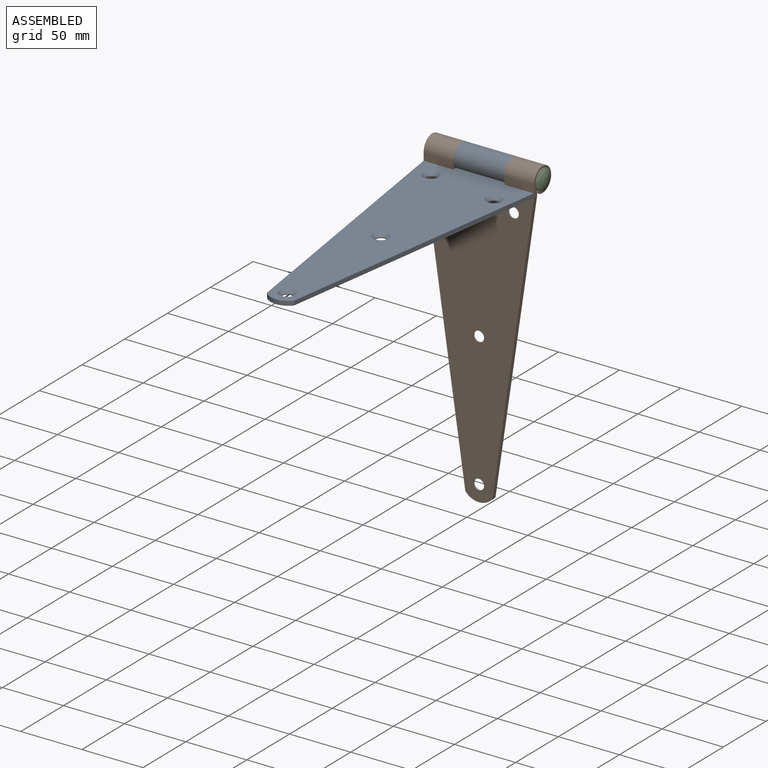
[diagram: assembled view]
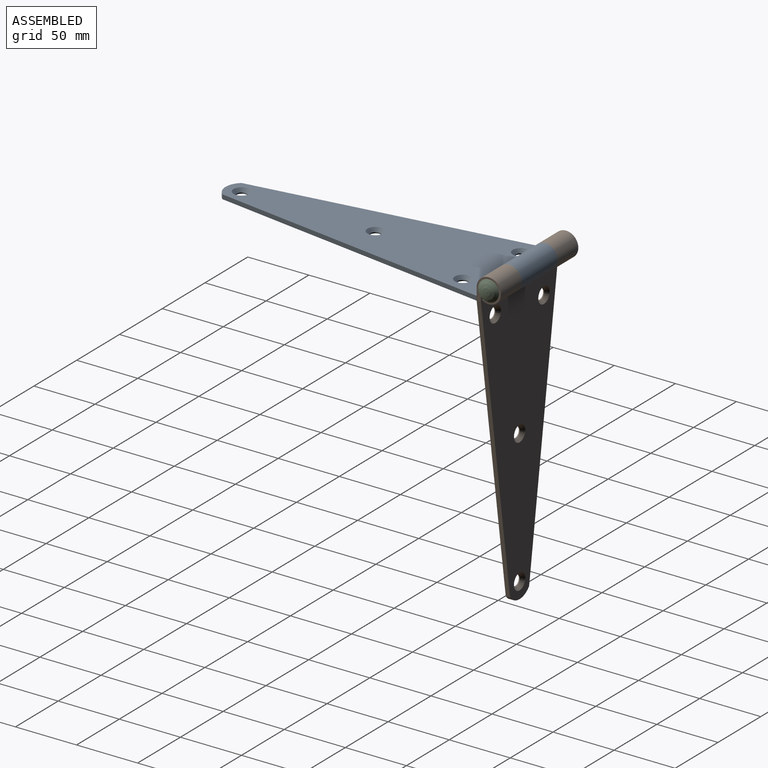
[diagram: assembled view, second angle]
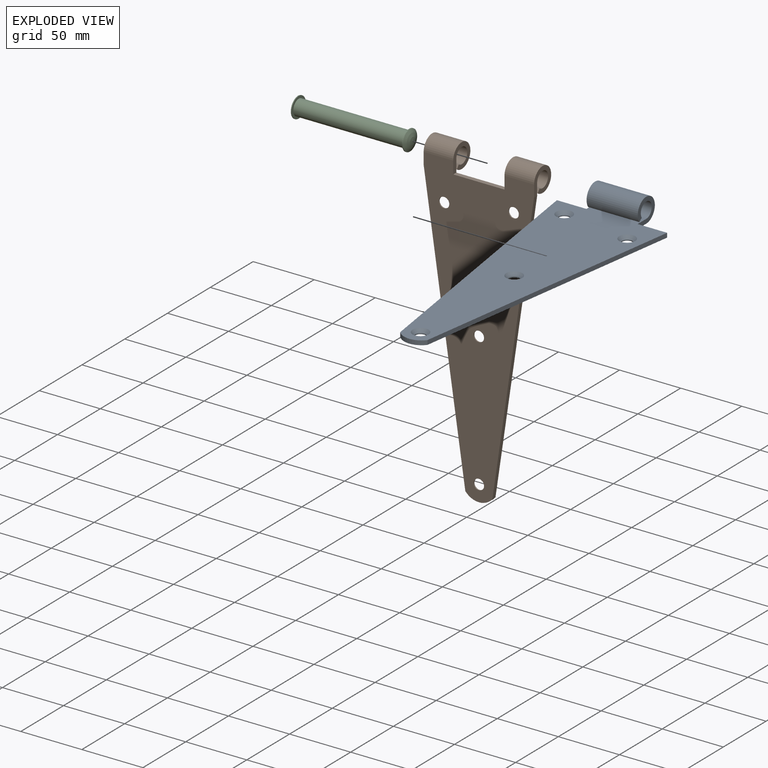
[diagram: exploded view]
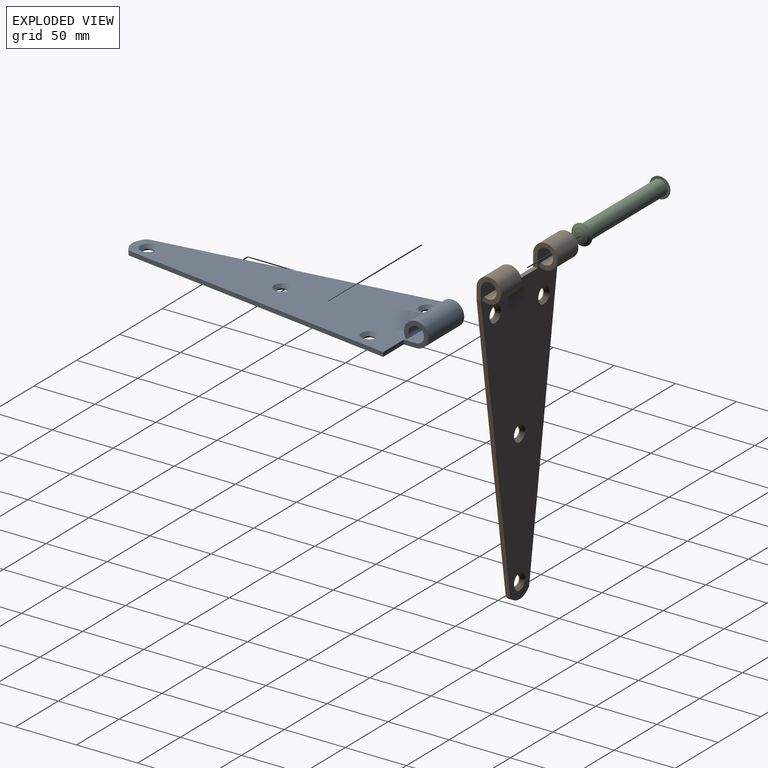
[diagram: exploded view, second angle]
ASSEMBLY  parts=3 mates=2
PART A: 20 faces, bbox 90.2x257.1x20 mm
  f0: plane 231.63x34.01mm, normal (-0.99,-0.15,0), area 832.5mm2, adj f2,f3,f7,f11
  f1: plane 231.63x34.01mm, normal (0.99,-0.15,0), area 832.5mm2, adj f2,f3,f7,f9
  f2: plane 247.11x90.25mm, normal (0,0,1), area 12986mm2, adj f0,f1,f5,f7,f8,f9,f10,f11
  f3: plane 247.11x90.25mm, normal (0,0,-1), area 13310.7mm2, adj f0,f1,f6,f7,f8,f9,f10,f11
  f4: plane 41.91x2.91mm, normal (0,0.57,-0.82), area 149mm2, adj f5,f6,f8,f10
  f5: cylinder r=6.43mm len=41.91mm, axis (-1,0,0), area 1433.7mm2, adj f2,f4,f8,f10
  f6: cylinder r=9.98mm len=41.91mm, axis (-1,0,0), area 2227mm2, adj f3,f4,f8,f10
  f7: cylinder r=14.27mm len=22.23mm, axis (0,0,-1), area 90.6mm2, adj f0,f1,f2,f3
  f8: plane 20.14x19.96mm, normal (1,0,0), area 191.4mm2, adj f2,f3,f4,f5,f6,f9
  f9: plane 24.17x3.56mm, normal (0,1,0), area 85.9mm2, adj f1,f2,f3,f8
  f10: plane 20.14x19.96mm, normal (-1,0,0), area 191.4mm2, adj f2,f3,f4,f5,f6,f11
  f11: plane 24.17x3.56mm, normal (0,1,0), area 85.9mm2, adj f0,f2,f3,f10
  f12: cylinder r=4.22mm len=8.43mm, axis (0,0,1), area 21.4mm2, adj f3,f13
  f13: cone r=4.22mm half-angle=41deg, axis (0,0,1), area 123.7mm2, adj f2,f12
  f14: cylinder r=4.22mm len=8.43mm, axis (0,0,1), area 21.4mm2, adj f3,f15
  f15: cone r=4.22mm half-angle=41deg, axis (0,0,1), area 123.7mm2, adj f2,f14
  f16: cylinder r=4.22mm len=8.43mm, axis (0,0,1), area 21.4mm2, adj f3,f17
  f17: cone r=4.22mm half-angle=41deg, axis (0,0,1), area 123.7mm2, adj f2,f16
  f18: cylinder r=4.22mm len=8.43mm, axis (0,0,1), area 21.4mm2, adj f3,f19
  f19: cone r=4.22mm half-angle=41deg, axis (0,0,1), area 123.7mm2, adj f2,f18
PART B: 26 faces, bbox 90.5x257.1x20 mm
  f0: plane 247.11x90.49mm, normal (0,0,1), area 13053.1mm2, adj f3,f5,f6,f7,f8,f9,f11,f13
  f1: plane 247.11x90.49mm, normal (0,0,-1), area 13377.7mm2, adj f4,f5,f6,f7,f8,f9,f12,f13
  f2: plane 24.26x2.91mm, normal (0,0.57,-0.82), area 86.3mm2, adj f3,f4,f14,f15
  f3: cylinder r=6.43mm len=24.26mm, axis (-1,0,0), area 829.8mm2, adj f0,f2,f14,f15
  f4: cylinder r=9.98mm len=24.26mm, axis (-1,0,0), area 1289mm2, adj f1,f2,f14,f15
  f5: plane 3.56x0.03mm, normal (0,1,0), area 0.1mm2, adj f0,f1,f7,f14
  f6: plane 3.56x0.03mm, normal (0,1,0), area 0.1mm2, adj f0,f1,f9,f13
  f7: plane 232.46x34.13mm, normal (-0.99,-0.15,0), area 835.5mm2, adj f0,f1,f5,f8
  f8: cylinder r=14.27mm len=22.23mm, axis (0,0,-1), area 90.6mm2, adj f0,f1,f7,f9
  f9: plane 232.46x34.13mm, normal (0.99,-0.15,0), area 835.5mm2, adj f0,f1,f6,f8
  f10: plane 24.26x2.91mm, normal (0,0.57,-0.82), area 86.3mm2, adj f11,f12,f13,f17
  f11: cylinder r=6.43mm len=24.26mm, axis (-1,0,0), area 829.8mm2, adj f0,f10,f13,f17
  f12: cylinder r=9.98mm len=24.26mm, axis (-1,0,0), area 1289mm2, adj f1,f10,f13,f17
  f13: plane 19.96x19.96mm, normal (1,0,0), area 188.5mm2, adj f0,f1,f6,f10,f11,f12
  f14: plane 19.96x19.96mm, normal (-1,0,0), area 188.5mm2, adj f0,f1,f2,f3,f4,f5
  f15: plane 20.14x19.96mm, normal (1,0,0), area 191.4mm2, adj f0,f1,f2,f3,f4,f16
  f16: plane 41.91x3.56mm, normal (0,1,0), area 149mm2, adj f0,f1,f15,f17
  f17: plane 20.14x19.96mm, normal (-1,0,0), area 191.4mm2, adj f0,f1,f10,f11,f12,f16
  f18: cylinder r=4.22mm len=8.43mm, axis (0,0,1), area 21.4mm2, adj f1,f19
  f19: cone r=4.22mm half-angle=41deg, axis (0,0,1), area 123.7mm2, adj f0,f18
  f20: cylinder r=4.22mm len=8.43mm, axis (0,0,1), area 21.4mm2, adj f1,f21
  f21: cone r=4.22mm half-angle=41deg, axis (0,0,1), area 123.7mm2, adj f0,f20
  f22: cylinder r=4.22mm len=8.43mm, axis (0,0,1), area 21.4mm2, adj f1,f23
  f23: cone r=4.22mm half-angle=41deg, axis (0,0,1), area 123.7mm2, adj f0,f22
  f24: cylinder r=4.22mm len=8.43mm, axis (0,0,1), area 21.4mm2, adj f1,f25
  f25: cone r=4.22mm half-angle=41deg, axis (0,0,1), area 123.7mm2, adj f0,f24
PART C: 7 faces, bbox 16.8x96.5x16.8 mm
  f0: cylinder r=6.39mm len=90.42mm, axis (0,-1,0), area 3629.4mm2, adj f1,f6
  f1: plane 16.76x16.76mm, normal (0,1,0), area 92.5mm2, adj f0,f2
  f2: cylinder r=8.38mm len=16.76mm, axis (0,-1,0), area 33.4mm2, adj f1,f3
  f3: sphere r=15.76mm, area 239mm2, adj f2
  f4: sphere r=15.76mm, area 239mm2, adj f5
  f5: cylinder r=8.38mm len=16.76mm, axis (0,-1,0), area 33.4mm2, adj f4,f6
  f6: plane 16.76x16.76mm, normal (0,-1,0), area 92.5mm2, adj f0,f5
PLACE A t=(0.04,-108.75,0.05)mm fixed
PLACE B rot(axis=(0,-0.71,-0.71),180deg) t=(0.04,114.1,-222.8)mm
PLACE C rot(axis=(0,0,-1),90deg) t=(-0.08,124.09,10.04)mm
MATE revolute C.f0 <-> B.f3  axis (-1,0,0) through (-0.08,124.09,10.04)mm
MATE revolute A.f5 <-> B.f3  axis (1,0,0) through (21,124.09,10.04)mm
